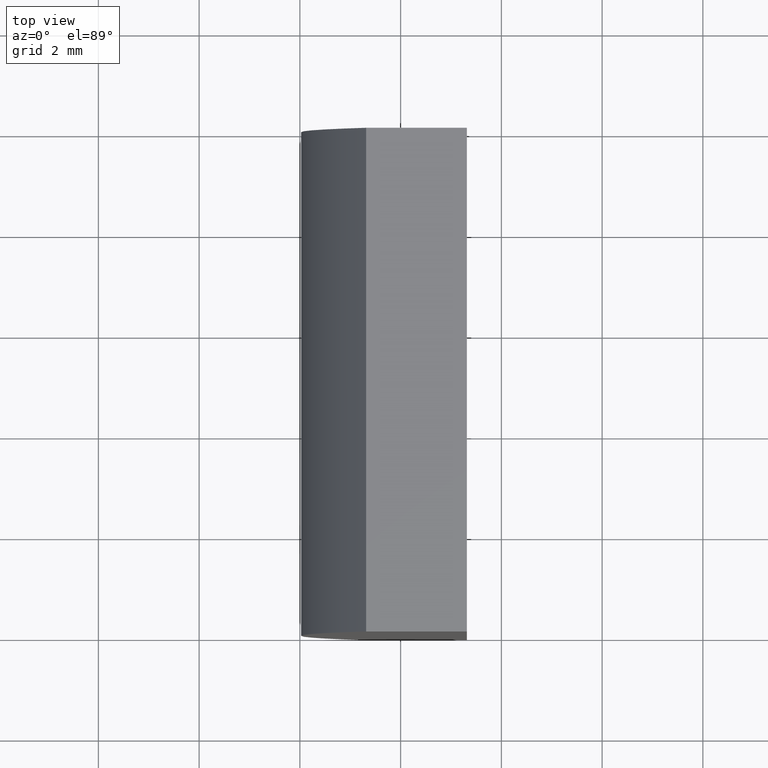
[diagram: clean part render]
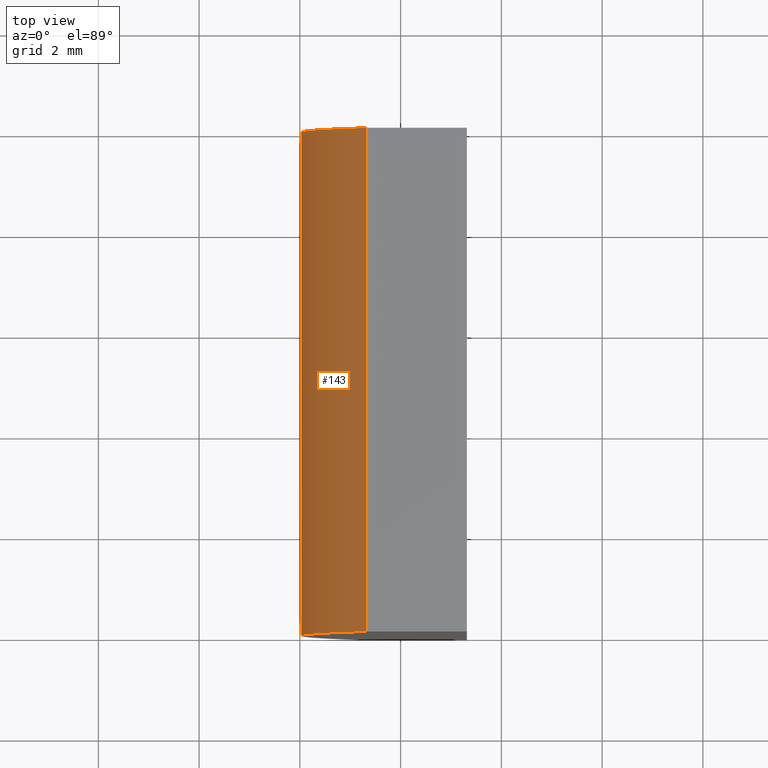
[diagram: same view with one face highlighted and labeled with its STEP entity id]
A machine part, top view. The second image highlights one B-rep face of the part: STEP entity #143.
In plain terms, the highlighted cylindrical surface (partial cylindrical patch) has radius 10.33 mm, axis along (-0, -1, -0).
Its self-contained STEP definition (entity closure, byte-faithful):
#2 = CARTESIAN_POINT ( 'NONE',  ( 4.355204334851265500, 10.00000000000000000, 4.286263797015675000E-017 ) ) ;
#9 = CARTESIAN_POINT ( 'NONE',  ( 4.355204334851265500, 10.00000000000000000, 4.286263797015675000E-017 ) ) ;
#18 = CARTESIAN_POINT ( 'NONE',  ( -4.684093204227751900, 10.00000000000000000, 5.000000000000002700 ) ) ;
#19 = CARTESIAN_POINT ( 'NONE',  ( -4.684093204227751900, 10.00000000000000000, 5.000000000000002700 ) ) ;
#20 = FACE_OUTER_BOUND ( 'NONE', #199, .T. ) ;
#22 = VECTOR ( 'NONE', #74, 1000.000000000000000 ) ;
#24 = VERTEX_POINT ( 'NONE', #89 ) ;
#28 = EDGE_CURVE ( 'NONE', #24, #108, #68, .T. ) ;
#44 = DIRECTION ( 'NONE',  ( 0.0000000000000000000, 1.000000000000000000, 0.0000000000000000000 ) ) ;
#52 = CARTESIAN_POINT ( 'NONE',  ( -4.684093204227751900, 0.0000000000000000000, 5.000000000000002700 ) ) ;
#60 = DIRECTION ( 'NONE',  ( 0.0000000000000000000, 0.0000000000000000000, -1.000000000000000000 ) ) ;
#68 = LINE ( 'NONE', #80, #130 ) ;
#74 = DIRECTION ( 'NONE',  ( -0.0000000000000000000, -1.000000000000000000, -0.0000000000000000000 ) ) ;
#80 = CARTESIAN_POINT ( 'NONE',  ( -4.684093204227755400, 10.00000000000000000, -4.999999999999997300 ) ) ;
#83 = AXIS2_PLACEMENT_3D ( 'NONE', #99, #133, #138 ) ;
#85 = EDGE_CURVE ( 'NONE', #108, #152, #172, .T. ) ;
#89 = CARTESIAN_POINT ( 'NONE',  ( -4.684093204227755400, 10.00000000000000000, -4.999999999999997300 ) ) ;
#90 = CIRCLE ( 'NONE', #197, 10.33000000000000000 ) ;
#99 = CARTESIAN_POINT ( 'NONE',  ( 4.355204334851265500, 0.0000000000000000000, 4.286263797015675000E-017 ) ) ;
#102 = EDGE_CURVE ( 'NONE', #180, #152, #173, .T. ) ;
#106 = ORIENTED_EDGE ( 'NONE', *, *, #85, .T. ) ;
#108 = VERTEX_POINT ( 'NONE', #184 ) ;
#110 = AXIS2_PLACEMENT_3D ( 'NONE', #9, #193, #60 ) ;
#112 = DIRECTION ( 'NONE',  ( -0.0000000000000000000, -1.000000000000000000, -0.0000000000000000000 ) ) ;
#120 = ORIENTED_EDGE ( 'NONE', *, *, #102, .F. ) ;
#130 = VECTOR ( 'NONE', #112, 1000.000000000000000 ) ;
#131 = DIRECTION ( 'NONE',  ( 0.0000000000000000000, 0.0000000000000000000, 1.000000000000000000 ) ) ;
#133 = DIRECTION ( 'NONE',  ( 0.0000000000000000000, 1.000000000000000000, 0.0000000000000000000 ) ) ;
#138 = DIRECTION ( 'NONE',  ( 0.0000000000000000000, 0.0000000000000000000, 1.000000000000000000 ) ) ;
#143 = ADVANCED_FACE ( 'NONE', ( #20 ), #194, .T. ) ;
#152 = VERTEX_POINT ( 'NONE', #52 ) ;
#172 = CIRCLE ( 'NONE', #83, 10.33000000000000000 ) ;
#173 = LINE ( 'NONE', #19, #22 ) ;
#179 = ORIENTED_EDGE ( 'NONE', *, *, #191, .F. ) ;
#180 = VERTEX_POINT ( 'NONE', #18 ) ;
#184 = CARTESIAN_POINT ( 'NONE',  ( -4.684093204227755400, 0.0000000000000000000, -4.999999999999997300 ) ) ;
#189 = ORIENTED_EDGE ( 'NONE', *, *, #28, .T. ) ;
#191 = EDGE_CURVE ( 'NONE', #24, #180, #90, .T. ) ;
#193 = DIRECTION ( 'NONE',  ( -0.0000000000000000000, -1.000000000000000000, -0.0000000000000000000 ) ) ;
#194 = CYLINDRICAL_SURFACE ( 'NONE', #110, 10.33000000000000000 ) ;
#197 = AXIS2_PLACEMENT_3D ( 'NONE', #2, #44, #131 ) ;
#199 = EDGE_LOOP ( 'NONE', ( #106, #120, #179, #189 ) ) ;